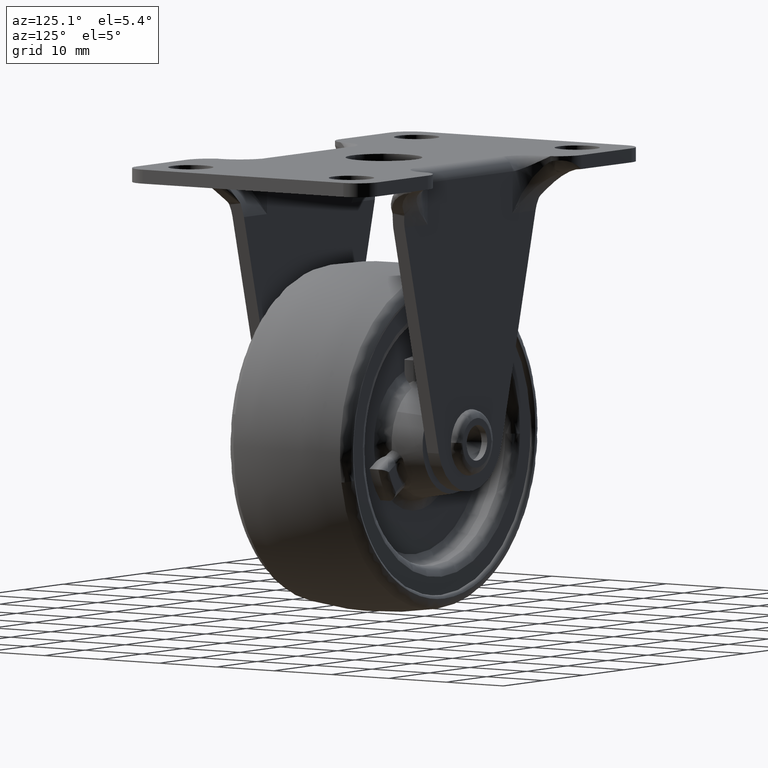
[diagram: clean part render]
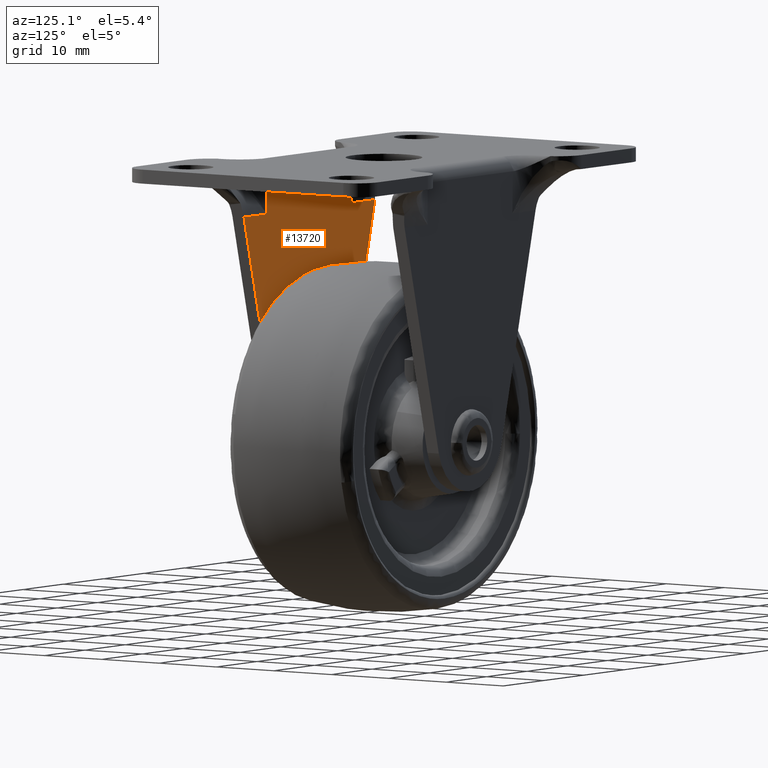
[diagram: same view with one face highlighted and labeled with its STEP entity id]
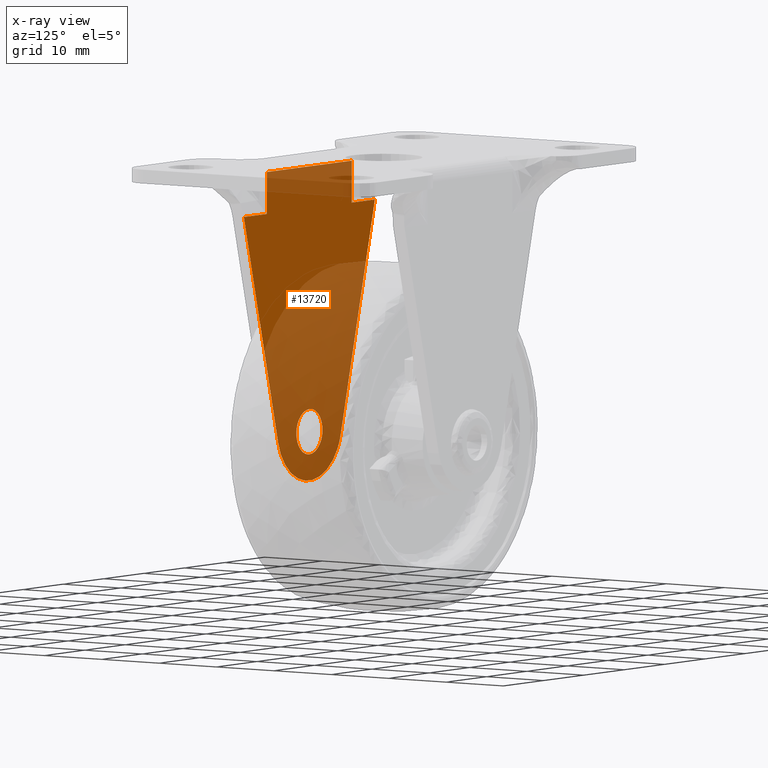
[diagram: x-ray of the same camera — body ghosted, the highlighted face saturated]
A machine part, auxiliary view. The second image highlights one B-rep face of the part: STEP entity #13720.
The next image is the same camera in x-ray: the body ghosted, the highlighted face saturated — about 60% of this face is hidden behind the body in this view.
In plain terms, the highlighted face is a freeform B-spline surface patch.
Its self-contained STEP definition (entity closure, byte-faithful):
#9467=CARTESIAN_POINT('',(0.0,-13.0,17.750000000000000));
#9468=VERTEX_POINT('',#9467);
#9469=CARTESIAN_POINT('',(3.239981334602527,-13.0,14.754992061498440));
#9470=VERTEX_POINT('',#9469);
#9471=CARTESIAN_POINT('',(0.0,-13.0,17.750000000000000));
#9472=CARTESIAN_POINT('',(3.004269097176811,-13.000000000000002,17.750000000000000));
#9473=CARTESIAN_POINT('',(3.239981334602527,-13.0,14.754992061498443));
#9481=(BOUNDED_CURVE()B_SPLINE_CURVE(2,(#9471,#9472,#9473),.UNSPECIFIED.,.F.,.U.)B_SPLINE_CURVE_WITH_KNOTS((3,3),(0.0,0.236331300592245),.UNSPECIFIED.)CURVE()GEOMETRIC_REPRESENTATION_ITEM()RATIONAL_B_SPLINE_CURVE((1.0,0.723120658652672,0.969723356087248))REPRESENTATION_ITEM(''));
#9482=EDGE_CURVE('',#9468,#9470,#9481,.T.);
#9523=CARTESIAN_POINT('',(-3.239981334602527,-13.0,14.245007938501560));
#9524=VERTEX_POINT('',#9523);
#9530=CARTESIAN_POINT('',(-3.239981334602527,-13.0,14.245007938501560));
#9531=CARTESIAN_POINT('',(-3.250000000000000,-13.000000000000004,14.372307151840360));
#9532=CARTESIAN_POINT('',(-3.250000000000000,-13.0,14.500000000000000));
#9533=CARTESIAN_POINT('',(-3.250000000000000,-13.0,17.750000000000004));
#9534=CARTESIAN_POINT('',(0.0,-13.0,17.750000000000000));
#9542=(BOUNDED_CURVE()B_SPLINE_CURVE(2,(#9530,#9531,#9532,#9533,#9534),.UNSPECIFIED.,.F.,.U.)B_SPLINE_CURVE_WITH_KNOTS((3,2,3),(0.736331300592245,0.750000000000000,1.0),.UNSPECIFIED.)CURVE()GEOMETRIC_REPRESENTATION_ITEM()RATIONAL_B_SPLINE_CURVE((0.969723356087248,0.983986122533876,1.0,0.707106781186547,1.0))REPRESENTATION_ITEM(''));
#9543=EDGE_CURVE('',#9524,#9468,#9542,.T.);
#9566=CARTESIAN_POINT('',(0.0,-13.0,11.250000000000000));
#9567=VERTEX_POINT('',#9566);
#9568=CARTESIAN_POINT('',(3.239981334602527,-13.0,14.754992061498443));
#9569=CARTESIAN_POINT('',(3.250000000000000,-13.000000000000004,14.627692848159647));
#9570=CARTESIAN_POINT('',(3.250000000000000,-13.0,14.500000000000000));
#9571=CARTESIAN_POINT('',(3.250000000000000,-13.0,11.250000000000000));
#9572=CARTESIAN_POINT('',(0.0,-13.0,11.250000000000000));
#9580=(BOUNDED_CURVE()B_SPLINE_CURVE(2,(#9568,#9569,#9570,#9571,#9572),.UNSPECIFIED.,.F.,.U.)B_SPLINE_CURVE_WITH_KNOTS((3,2,3),(0.236331300592245,0.250000000000000,0.500000000000000),.UNSPECIFIED.)CURVE()GEOMETRIC_REPRESENTATION_ITEM()RATIONAL_B_SPLINE_CURVE((0.969723356087248,0.983986122533876,1.0,0.707106781186547,1.0))REPRESENTATION_ITEM(''));
#9581=EDGE_CURVE('',#9470,#9567,#9580,.T.);
#9583=CARTESIAN_POINT('',(0.0,-13.0,11.250000000000000));
#9584=CARTESIAN_POINT('',(-3.004269097176822,-13.000000000000002,11.250000000000000));
#9585=CARTESIAN_POINT('',(-3.239981334602527,-13.000000000000004,14.245007938501562));
#9593=(BOUNDED_CURVE()B_SPLINE_CURVE(2,(#9583,#9584,#9585),.UNSPECIFIED.,.F.,.U.)B_SPLINE_CURVE_WITH_KNOTS((3,3),(0.500000000000000,0.736331300592245),.UNSPECIFIED.)CURVE()GEOMETRIC_REPRESENTATION_ITEM()RATIONAL_B_SPLINE_CURVE((1.0,0.723120658652671,0.969723356087250))REPRESENTATION_ITEM(''));
#9594=EDGE_CURVE('',#9567,#9524,#9593,.T.);
#10968=CARTESIAN_POINT('',(10.514709999999999,-13.0,46.500000000000000));
#10969=VERTEX_POINT('',#10968);
#11201=CARTESIAN_POINT('',(-10.514711081367521,-13.000000000005681,46.500000000000000));
#11202=VERTEX_POINT('',#11201);
#13481=CARTESIAN_POINT('',(-10.514711081367521,-13.000000000005681,52.500000000000000));
#13482=VERTEX_POINT('',#13481);
#13483=CARTESIAN_POINT('',(-10.514711081367521,-13.000000000005681,46.500000000000000));
#13484=CARTESIAN_POINT('',(-10.514711081367521,-13.000000000005681,52.500000000000000));
#13485=QUASI_UNIFORM_CURVE('',1,(#13483,#13484),.UNSPECIFIED.,.F.,.U.);
#13486=EDGE_CURVE('',#11202,#13482,#13485,.T.);
#13519=CARTESIAN_POINT('',(10.514710000000139,-13.0,52.500000000000000));
#13520=VERTEX_POINT('',#13519);
#13535=CARTESIAN_POINT('',(10.514709999999999,-13.0,46.500000000000000));
#13536=CARTESIAN_POINT('',(10.514710000000139,-13.0,52.500000000000000));
#13537=QUASI_UNIFORM_CURVE('',1,(#13535,#13536),.UNSPECIFIED.,.F.,.U.);
#13538=EDGE_CURVE('',#10969,#13520,#13537,.T.);
#13633=CARTESIAN_POINT('',(16.235484006047699,-13.0,46.500000000000000));
#13634=VERTEX_POINT('',#13633);
#13635=CARTESIAN_POINT('',(10.514709999999999,-13.0,46.500000000000000));
#13636=CARTESIAN_POINT('',(16.235484006047699,-13.0,46.500000000000000));
#13637=QUASI_UNIFORM_CURVE('',1,(#13635,#13636),.UNSPECIFIED.,.F.,.U.);
#13638=EDGE_CURVE('',#10969,#13634,#13637,.T.);
#13663=CARTESIAN_POINT('',(-17.857412033563531,-13.0,5.252235897286143));
#13664=CARTESIAN_POINT('',(-17.857412033563531,-13.0,54.747751794843182));
#13665=CARTESIAN_POINT('',(17.857407387316510,-13.0,5.252235897286143));
#13666=CARTESIAN_POINT('',(17.857407387316510,-13.0,54.747751794843182));
#13667=B_SPLINE_SURFACE_WITH_KNOTS('',1,1,((#13663,#13665),(#13664,#13666)),.UNSPECIFIED.,.F.,.F.,.U.,(2,2),(2,2),(0.0,49.495515897557027),(0.0,35.714819420880040),.UNSPECIFIED.);
#13668=CARTESIAN_POINT('',(-16.235487491042299,-13.0,46.500000000000000));
#13669=VERTEX_POINT('',#13668);
#13670=CARTESIAN_POINT('',(-16.235487491042299,-13.0,46.500000000000000));
#13671=CARTESIAN_POINT('',(-10.514711081367521,-13.000000000005681,46.500000000000000));
#13672=QUASI_UNIFORM_CURVE('',1,(#13670,#13671),.UNSPECIFIED.,.F.,.U.);
#13673=EDGE_CURVE('',#13669,#11202,#13672,.T.);
#13674=ORIENTED_EDGE('',*,*,#13673,.T.);
#13675=ORIENTED_EDGE('',*,*,#13486,.T.);
#13676=CARTESIAN_POINT('',(-10.514711081367521,-13.000000000005681,52.500000000000000));
#13677=CARTESIAN_POINT('',(10.514710000000139,-13.0,52.500000000000000));
#13678=QUASI_UNIFORM_CURVE('',1,(#13676,#13677),.UNSPECIFIED.,.F.,.U.);
#13679=EDGE_CURVE('',#13482,#13520,#13678,.T.);
#13680=ORIENTED_EDGE('',*,*,#13679,.T.);
#13681=ORIENTED_EDGE('',*,*,#13538,.F.);
#13682=ORIENTED_EDGE('',*,*,#13638,.T.);
#13683=CARTESIAN_POINT('',(7.747727412490600,-13.0,13.506821941964301));
#13684=VERTEX_POINT('',#13683);
#13685=CARTESIAN_POINT('',(16.235484006047699,-13.0,46.500000000000000));
#13686=CARTESIAN_POINT('',(7.747727412490600,-13.0,13.506821941964301));
#13687=QUASI_UNIFORM_CURVE('',1,(#13685,#13686),.UNSPECIFIED.,.F.,.U.);
#13688=EDGE_CURVE('',#13634,#13684,#13687,.T.);
#13689=ORIENTED_EDGE('',*,*,#13688,.T.);
#13690=CARTESIAN_POINT('',(-7.747729266994340,-13.0,13.506821602103139));
#13691=VERTEX_POINT('',#13690);
#13692=CARTESIAN_POINT('',(7.747727412490606,-13.0,13.506821941964301));
#13693=CARTESIAN_POINT('',(6.202421409813919,-13.0,7.499986621172252));
#13694=CARTESIAN_POINT('',(-0.000000795504218,-13.0,7.499986485134802));
#13695=CARTESIAN_POINT('',(-6.202423000822352,-13.0,7.499986349097354));
#13696=CARTESIAN_POINT('',(-7.747729266994338,-13.0,13.506821602103139));
#13704=(BOUNDED_CURVE()B_SPLINE_CURVE(2,(#13692,#13693,#13694,#13695,#13696),.UNSPECIFIED.,.F.,.U.)B_SPLINE_CURVE_WITH_KNOTS((3,2,3),(0.0,0.500000000000000,1.0),.UNSPECIFIED.)CURVE()GEOMETRIC_REPRESENTATION_ITEM()RATIONAL_B_SPLINE_CURVE((1.0,0.790299180417655,1.0,0.790299180417655,1.0))REPRESENTATION_ITEM(''));
#13705=EDGE_CURVE('',#13684,#13691,#13704,.T.);
#13706=ORIENTED_EDGE('',*,*,#13705,.T.);
#13707=CARTESIAN_POINT('',(-7.747729266994340,-13.0,13.506821602103139));
#13708=CARTESIAN_POINT('',(-16.235487491042299,-13.0,46.500000000000000));
#13709=QUASI_UNIFORM_CURVE('',1,(#13707,#13708),.UNSPECIFIED.,.F.,.U.);
#13710=EDGE_CURVE('',#13691,#13669,#13709,.T.);
#13711=ORIENTED_EDGE('',*,*,#13710,.T.);
#13712=EDGE_LOOP('',(#13674,#13675,#13680,#13681,#13682,#13689,#13706,#13711));
#13713=FACE_OUTER_BOUND('',#13712,.T.);
#13714=ORIENTED_EDGE('',*,*,#9594,.F.);
#13715=ORIENTED_EDGE('',*,*,#9581,.F.);
#13716=ORIENTED_EDGE('',*,*,#9482,.F.);
#13717=ORIENTED_EDGE('',*,*,#9543,.F.);
#13718=EDGE_LOOP('',(#13714,#13715,#13716,#13717));
#13719=FACE_BOUND('',#13718,.T.);
#13720=ADVANCED_FACE('',(#13713,#13719),#13667,.T.);